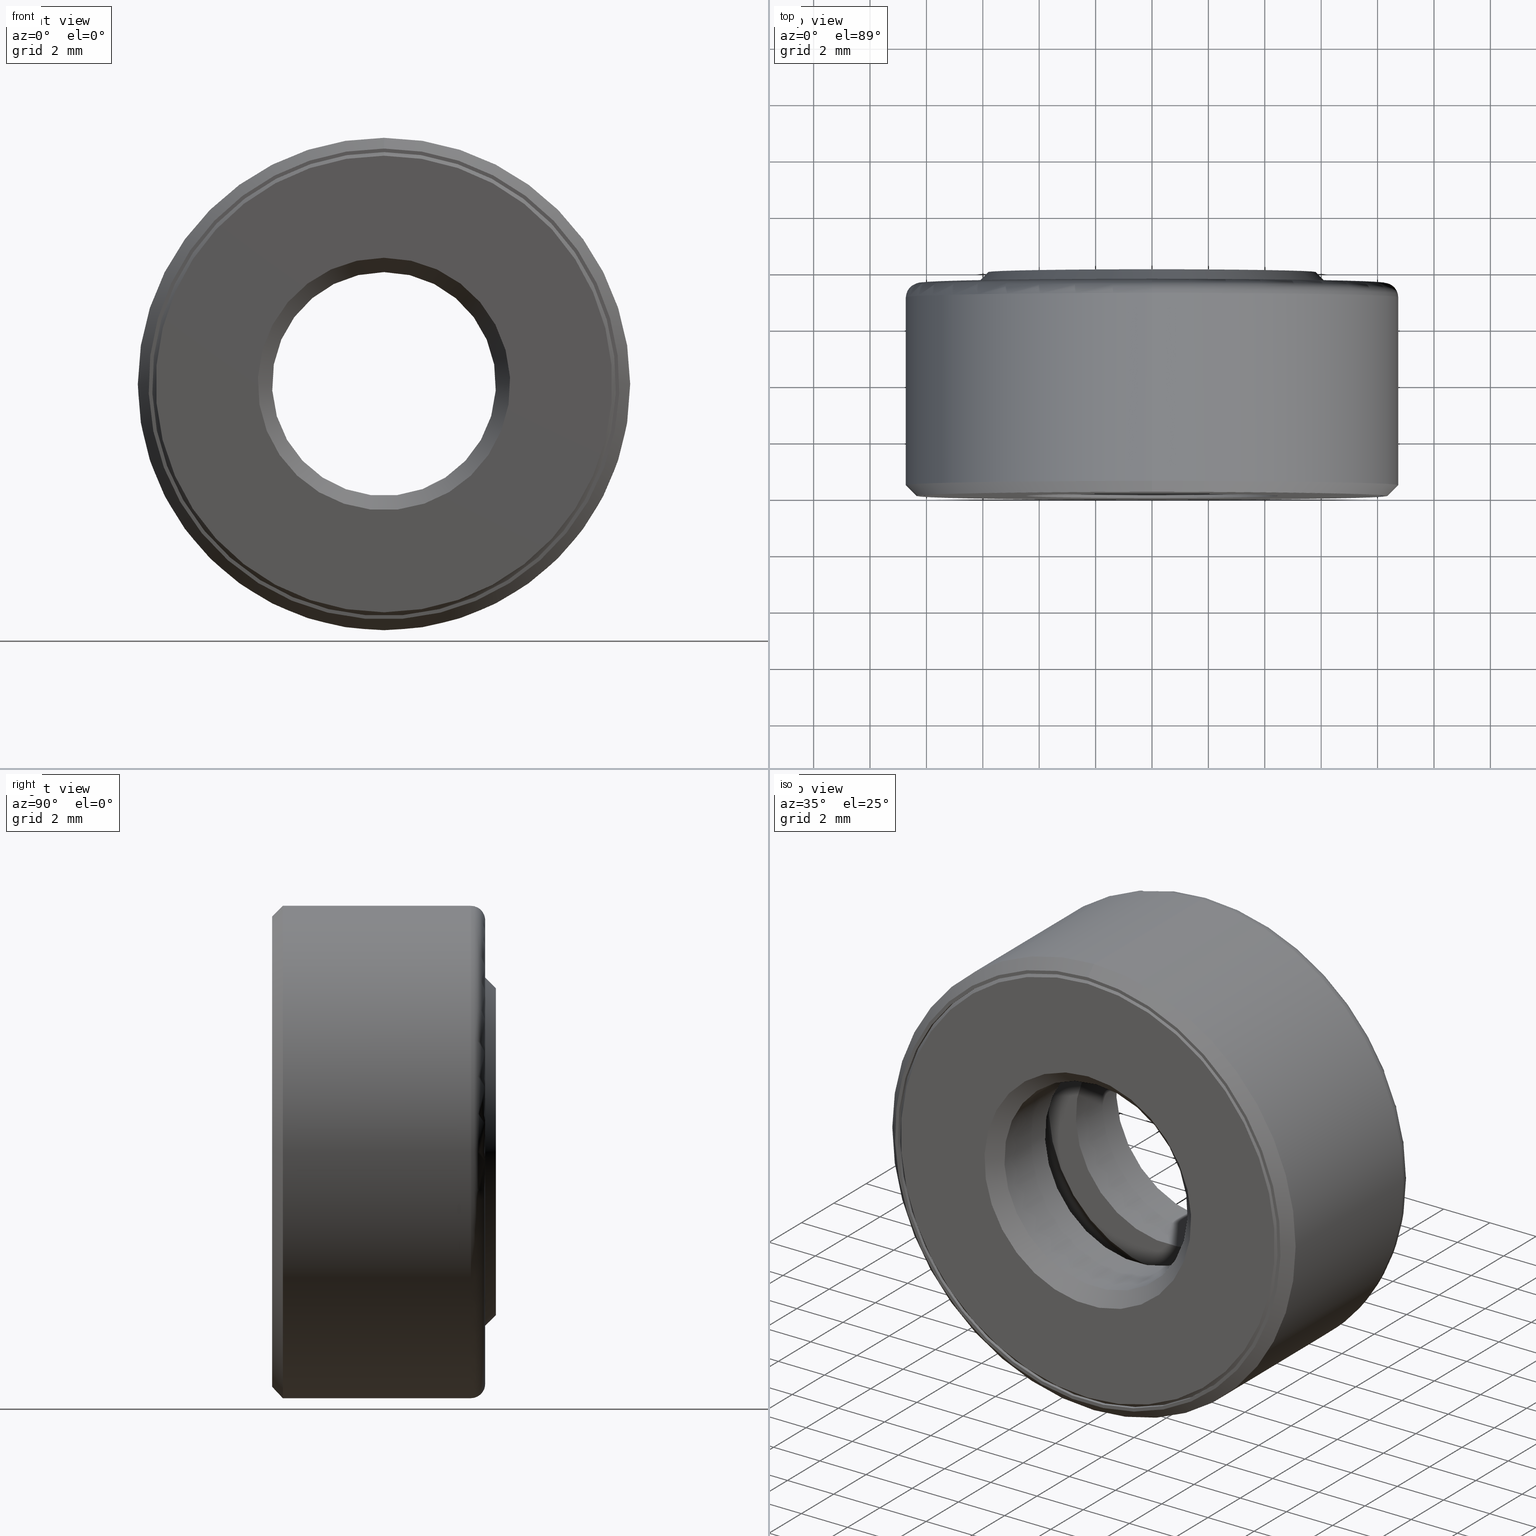
[diagram: canonical four-view strip — front | top / right | iso, engineering-drawing reading convention]
A machine part, canonical four-view strip (front | top / right | iso — engineering-drawing reading convention). The complete STEP part file that produces these views, byte-faithful:
ISO-10303-21;
HEADER;
FILE_DESCRIPTION (( 'STEP AP203' ),
    '1' );
FILE_NAME ('T-100-00.step',
    '2016-06-29T18:27:09',
    ( '' ),
    ( '' ),
    'SwSTEP 2.0',
    'SolidWorks 2016',
    '' );
FILE_SCHEMA (( 'CONFIG_CONTROL_DESIGN' ));
ENDSEC;

DATA;
#1 = EDGE_CURVE ( 'NONE', #434, #434, #105, .T. ) ;
#2 = CARTESIAN_POINT ( 'NONE',  ( 0.0000000000000000000, 0.2974999999999999900, 0.0000000000000000000 ) ) ;
#3 = DIRECTION ( 'NONE',  ( 0.0000000000000000000, 0.0000000000000000000, 1.000000000000000000 ) ) ;
#4 = ORIENTED_EDGE ( 'NONE', *, *, #45, .T. ) ;
#5 = TOROIDAL_SURFACE ( 'NONE', #60, 0.2522499999999998100, 0.06250000000000000000 ) ;
#6 = CARTESIAN_POINT ( 'NONE',  ( 0.0000000000000000000, -6.402768735150618500E-018, 0.0000000000000000000 ) ) ;
#7 = AXIS2_PLACEMENT_3D ( 'NONE', #490, #65, #578 ) ;
#8 = EDGE_CURVE ( 'NONE', #571, #571, #26, .T. ) ;
#9 = FACE_OUTER_BOUND ( 'NONE', #268, .T. ) ;
#10 = EDGE_LOOP ( 'NONE', ( #586 ) ) ;
#11 = CALENDAR_DATE ( 2016, 29, 6 ) ;
#12 = ADVANCED_FACE ( 'NONE', ( #529, #432 ), #41, .F. ) ;
#13 = DIRECTION ( 'NONE',  ( 0.0000000000000000000, 0.0000000000000000000, 1.000000000000000000 ) ) ;
#14 = APPROVAL ( #34, 'UNSPECIFIED' ) ;
#15 = DIRECTION ( 'NONE',  ( 0.0000000000000000000, 0.0000000000000000000, 1.000000000000000000 ) ) ;
#16 = ADVANCED_FACE ( 'NONE', ( #404, #144 ), #274, .F. ) ;
#17 = DIRECTION ( 'NONE',  ( -0.0000000000000000000, 1.000000000000000000, -0.0000000000000000000 ) ) ;
#18 = FACE_BOUND ( 'NONE', #530, .T. ) ;
#19 = EDGE_CURVE ( 'NONE', #37, #37, #195, .T. ) ;
#20 = EDGE_LOOP ( 'NONE', ( #362 ) ) ;
#21 = ADVANCED_FACE ( 'NONE', ( #414, #9 ), #265, .F. ) ;
#22 = SECURITY_CLASSIFICATION ( '', '', #225 ) ;
#23 = PERSON_AND_ORGANIZATION ( #277, #369 ) ;
#24 = DIRECTION ( 'NONE',  ( -0.0000000000000000000, 1.000000000000000000, -0.0000000000000000000 ) ) ;
#25 = FACE_OUTER_BOUND ( 'NONE', #20, .T. ) ;
#26 = CIRCLE ( 'NONE', #130, 0.3237499999999999300 ) ;
#27 = AXIS2_PLACEMENT_3D ( 'NONE', #509, #231, #229 ) ;
#28 = AXIS2_PLACEMENT_3D ( 'NONE', #387, #445, #13 ) ;
#29 = CARTESIAN_POINT ( 'NONE',  ( 0.0000000000000000000, 0.1937500000000000100, 0.0000000000000000000 ) ) ;
#30 = CARTESIAN_POINT ( 'NONE',  ( 0.0000000000000000000, 0.0000000000000000000, 0.1762500000000000500 ) ) ;
#31 = DIRECTION ( 'NONE',  ( -0.0000000000000000000, 1.000000000000000000, -0.0000000000000000000 ) ) ;
#32 = CIRCLE ( 'NONE', #497, 0.1562500000000000800 ) ;
#33 = ORIENTED_EDGE ( 'NONE', *, *, #584, .F. ) ;
#34 = APPROVAL_STATUS ( 'not_yet_approved' ) ;
#35 = ORIENTED_EDGE ( 'NONE', *, *, #278, .F. ) ;
#36 = LOCAL_TIME ( 14, 27, 9.000000000000000000, #409 ) ;
#37 = VERTEX_POINT ( 'NONE', #261 ) ;
#38 = APPROVAL_ROLE ( '' ) ;
#39 = DATE_TIME_ROLE ( 'creation_date' ) ;
#40 = AXIS2_PLACEMENT_3D ( 'NONE', #299, #254, #194 ) ;
#41 = CYLINDRICAL_SURFACE ( 'NONE', #165, 0.3237499999999999300 ) ;
#42 = DIRECTION ( 'NONE',  ( -0.0000000000000000000, 1.000000000000000000, -0.0000000000000000000 ) ) ;
#43 = ORIENTED_EDGE ( 'NONE', *, *, #149, .F. ) ;
#44 = FACE_BOUND ( 'NONE', #10, .T. ) ;
#45 = EDGE_CURVE ( 'NONE', #506, #506, #510, .T. ) ;
#46 = PLANE ( 'NONE',  #27 ) ;
#47 = DIRECTION ( 'NONE',  ( 0.0000000000000000000, 0.0000000000000000000, 1.000000000000000000 ) ) ;
#48 = AXIS2_PLACEMENT_3D ( 'NONE', #326, #228, #560 ) ;
#49 = DIRECTION ( 'NONE',  ( 0.0000000000000000000, -0.0000000000000000000, -1.000000000000000000 ) ) ;
#50 = ORIENTED_EDGE ( 'NONE', *, *, #406, .F. ) ;
#51 = APPROVAL_DATE_TIME ( #532, #371 ) ;
#52 = VERTEX_POINT ( 'NONE', #118 ) ;
#53 = CC_DESIGN_PERSON_AND_ORGANIZATION_ASSIGNMENT ( #269, #170, ( #22 ) ) ;
#54 = DIRECTION ( 'NONE',  ( -0.0000000000000000000, 1.000000000000000000, -0.0000000000000000000 ) ) ;
#55 = DIRECTION ( 'NONE',  ( -0.0000000000000000000, 1.000000000000000000, -0.0000000000000000000 ) ) ;
#56 = DIRECTION ( 'NONE',  ( 0.0000000000000000000, 0.0000000000000000000, 1.000000000000000000 ) ) ;
#57 = SPHERICAL_SURFACE ( 'NONE', #521, 0.06250000000000001400 ) ;
#58 = ORIENTED_EDGE ( 'NONE', *, *, #103, .T. ) ;
#59 = FACE_OUTER_BOUND ( 'NONE', #377, .T. ) ;
#60 = AXIS2_PLACEMENT_3D ( 'NONE', #108, #346, #202 ) ;
#61 = ADVANCED_FACE ( 'NONE', ( #384, #63 ), #46, .F. ) ;
#62 = DIRECTION ( 'NONE',  ( 0.0000000000000000000, 0.0000000000000000000, -1.000000000000000000 ) ) ;
#63 = FACE_BOUND ( 'NONE', #163, .T. ) ;
#64 = CLOSED_SHELL ( 'NONE', ( #304 ) ) ;
#65 = DIRECTION ( 'NONE',  ( -0.0000000000000000000, 1.000000000000000000, -0.0000000000000000000 ) ) ;
#66 = EDGE_LOOP ( 'NONE', ( #209 ) ) ;
#67 = ADVANCED_FACE ( 'NONE', ( #279, #538 ), #555, .F. ) ;
#68 = ADVANCED_FACE ( 'NONE', ( #292, #129 ), #367, .T. ) ;
#69 = DIRECTION ( 'NONE',  ( 0.0000000000000000000, 0.0000000000000000000, 1.000000000000000000 ) ) ;
#70 = AXIS2_PLACEMENT_3D ( 'NONE', #284, #54, #3 ) ;
#71 = EDGE_CURVE ( 'NONE', #139, #139, #258, .T. ) ;
#72 = CARTESIAN_POINT ( 'NONE',  ( 0.0000000000000000000, 0.005000000000000053000, 0.3237499999999999300 ) ) ;
#73 = CIRCLE ( 'NONE', #515, 0.2022499999999997900 ) ;
#74 = AXIS2_PLACEMENT_3D ( 'NONE', #132, #181, #134 ) ;
#75 = EDGE_LOOP ( 'NONE', ( #131 ) ) ;
#76 = ORIENTED_EDGE ( 'NONE', *, *, #103, .F. ) ;
#77 = COORDINATED_UNIVERSAL_TIME_OFFSET ( 5, 0, .BEHIND. ) ;
#78 = VERTEX_POINT ( 'NONE', #219 ) ;
#79 = CARTESIAN_POINT ( 'NONE',  ( 0.0000000000000000000, 0.1187500000000001100, 0.1562500000000000800 ) ) ;
#80 =( NAMED_UNIT ( * ) PLANE_ANGLE_UNIT ( ) SI_UNIT ( $, .RADIAN. ) );
#81 = MANIFOLD_SOLID_BREP ( 'BALLS[2]', #64 ) ;
#82 = CC_DESIGN_DATE_AND_TIME_ASSIGNMENT ( #260, #600, ( #22 ) ) ;
#83 = APPROVAL_ROLE ( '' ) ;
#84 = DIRECTION ( 'NONE',  ( 0.0000000000000000000, -1.000000000000000000, 0.0000000000000000000 ) ) ;
#85 = CONICAL_SURFACE ( 'NONE', #301, 0.1562500000000000800, 0.7853981633974508300 ) ;
#86 = CARTESIAN_POINT ( 'NONE',  ( 0.0000000000000000000, 0.005000000000000053000, 0.0000000000000000000 ) ) ;
#87 = AXIS2_PLACEMENT_3D ( 'NONE', #605, #366, #601 ) ;
#88 = DIRECTION ( 'NONE',  ( 0.0000000000000000000, 0.0000000000000000000, 1.000000000000000000 ) ) ;
#89 = FACE_OUTER_BOUND ( 'NONE', #75, .T. ) ;
#90 = EDGE_LOOP ( 'NONE', ( #588 ) ) ;
#91 = CALENDAR_DATE ( 2016, 29, 6 ) ;
#92 = EDGE_CURVE ( 'NONE', #253, #253, #152, .T. ) ;
#93 = FACE_BOUND ( 'NONE', #489, .T. ) ;
#94 = DIRECTION ( 'NONE',  ( 0.0000000000000000000, 0.0000000000000000000, 1.000000000000000000 ) ) ;
#95 = PLANE ( 'NONE',  #263 ) ;
#96 = ORIENTED_EDGE ( 'NONE', *, *, #464, .F. ) ;
#97 = ORIENTED_EDGE ( 'NONE', *, *, #71, .T. ) ;
#98 = CARTESIAN_POINT ( 'NONE',  ( -3.558238285066759900E-034, -3.201384367575308500E-018, 0.0000000000000000000 ) ) ;
#99 = CIRCLE ( 'NONE', #7, 0.3022499999999998500 ) ;
#100 = AXIS2_PLACEMENT_3D ( 'NONE', #98, #338, #291 ) ;
#101 = DIRECTION ( 'NONE',  ( -0.0000000000000000000, 1.000000000000000000, -0.0000000000000000000 ) ) ;
#102 = CARTESIAN_POINT ( 'NONE',  ( 0.0000000000000000000, 0.0000000000000000000, 0.0000000000000000000 ) ) ;
#103 = EDGE_CURVE ( 'NONE', #442, #442, #525, .T. ) ;
#104 = CARTESIAN_POINT ( 'NONE',  ( 0.2522499999999998100, 0.1562500000000000300, -1.761452335446359400E-015 ) ) ;
#105 = CIRCLE ( 'NONE', #114, 0.3237500000000000400 ) ;
#106 = ORIENTED_EDGE ( 'NONE', *, *, #172, .T. ) ;
#107 = DIRECTION ( 'NONE',  ( -0.0000000000000000000, 1.000000000000000000, -0.0000000000000000000 ) ) ;
#108 = CARTESIAN_POINT ( 'NONE',  ( 0.0000000000000000000, 0.1562500000000000300, 0.0000000000000000000 ) ) ;
#109 = ADVANCED_FACE ( 'NONE', ( #303, #603 ), #322, .T. ) ;
#110 = EDGE_LOOP ( 'NONE', ( #517 ) ) ;
#111 = ORIENTED_EDGE ( 'NONE', *, *, #1, .T. ) ;
#112 = TOROIDAL_SURFACE ( 'NONE', #554, 0.2522499999999998100, 0.06249999999999999300 ) ;
#113 = CARTESIAN_POINT ( 'NONE',  ( 0.0000000000000000000, 0.2974999999999999900, 0.2637499999999999300 ) ) ;
#114 = AXIS2_PLACEMENT_3D ( 'NONE', #122, #221, #264 ) ;
#115 = FACE_OUTER_BOUND ( 'NONE', #476, .T. ) ;
#116 = AXIS2_PLACEMENT_3D ( 'NONE', #583, #266, #359 ) ;
#117 = EDGE_LOOP ( 'NONE', ( #33 ) ) ;
#118 = CARTESIAN_POINT ( 'NONE',  ( 0.0000000000000000000, 0.01999999999999995900, 0.1562500000000000300 ) ) ;
#119 = COORDINATED_UNIVERSAL_TIME_OFFSET ( 5, 0, .BEHIND. ) ;
#120 = CARTESIAN_POINT ( 'NONE',  ( 0.0000000000000000000, 0.1937500000000000100, 0.3022499999999998500 ) ) ;
#121 = EDGE_CURVE ( 'NONE', #576, #576, #32, .T. ) ;
#122 = CARTESIAN_POINT ( 'NONE',  ( 0.0000000000000000000, 0.2974999999999999900, 0.0000000000000000000 ) ) ;
#123 = ADVANCED_BREP_SHAPE_REPRESENTATION ( 'T-100-00', ( #318, #332, #288, #564, #81, #237, #116 ), #419 ) ;
#124 = CARTESIAN_POINT ( 'NONE',  ( 0.0000000000000000000, 0.1187500000000001100, 0.0000000000000000000 ) ) ;
#125 = EDGE_LOOP ( 'NONE', ( #35 ) ) ;
#126 = CARTESIAN_POINT ( 'NONE',  ( 0.0000000000000000000, 0.2775000000000000200, 0.3237499999999999300 ) ) ;
#127 = DIRECTION ( 'NONE',  ( 0.0000000000000000000, 0.0000000000000000000, 1.000000000000000000 ) ) ;
#128 = AXIS2_PLACEMENT_3D ( 'NONE', #486, #437, #15 ) ;
#129 = FACE_OUTER_BOUND ( 'NONE', #416, .T. ) ;
#130 = AXIS2_PLACEMENT_3D ( 'NONE', #124, #593, #508 ) ;
#131 = ORIENTED_EDGE ( 'NONE', *, *, #278, .T. ) ;
#132 = CARTESIAN_POINT ( 'NONE',  ( 0.0000000000000000000, 0.2774999999999999700, 0.0000000000000000000 ) ) ;
#133 = CC_DESIGN_APPROVAL ( #523, ( #22 ) ) ;
#134 = DIRECTION ( 'NONE',  ( 0.0000000000000000000, 0.0000000000000000000, 1.000000000000000000 ) ) ;
#135 = FACE_BOUND ( 'NONE', #549, .T. ) ;
#136 = CARTESIAN_POINT ( 'NONE',  ( 0.0000000000000000000, 0.01999999999999995900, 0.0000000000000000000 ) ) ;
#137 = ORIENTED_EDGE ( 'NONE', *, *, #8, .T. ) ;
#138 = CALENDAR_DATE ( 2016, 29, 6 ) ;
#139 = VERTEX_POINT ( 'NONE', #72 ) ;
#140 = AXIS2_PLACEMENT_3D ( 'NONE', #156, #536, #197 ) ;
#141 = DIRECTION ( 'NONE',  ( 0.0000000000000000000, 0.0000000000000000000, 1.000000000000000000 ) ) ;
#142 = DIRECTION ( 'NONE',  ( -0.0000000000000000000, 1.000000000000000000, -0.0000000000000000000 ) ) ;
#143 = DIRECTION ( 'NONE',  ( 0.0000000000000000000, 0.0000000000000000000, 1.000000000000000000 ) ) ;
#144 = FACE_BOUND ( 'NONE', #459, .T. ) ;
#145 = DIRECTION ( 'NONE',  ( -0.0000000000000000000, 1.000000000000000000, -0.0000000000000000000 ) ) ;
#146 = AXIS2_PLACEMENT_3D ( 'NONE', #463, #423, #47 ) ;
#147 = AXIS2_PLACEMENT_3D ( 'NONE', #6, #55, #380 ) ;
#148 = DIRECTION ( 'NONE',  ( 0.0000000000000000000, 0.0000000000000000000, 1.000000000000000000 ) ) ;
#149 = EDGE_CURVE ( 'NONE', #340, #340, #285, .T. ) ;
#150 = CARTESIAN_POINT ( 'NONE',  ( 0.0000000000000000000, 0.3125000000000000000, 0.0000000000000000000 ) ) ;
#151 = ADVANCED_FACE ( 'NONE', ( #18, #514 ), #95, .F. ) ;
#152 = CIRCLE ( 'NONE', #87, 0.1562500000000000800 ) ;
#153 = EDGE_LOOP ( 'NONE', ( #390 ) ) ;
#154 = ORIENTED_EDGE ( 'NONE', *, *, #220, .T. ) ;
#155 = PERSON_AND_ORGANIZATION ( #277, #369 ) ;
#156 = CARTESIAN_POINT ( 'NONE',  ( 0.0000000000000000000, 0.2775000000000000200, 0.0000000000000000000 ) ) ;
#157 = FACE_OUTER_BOUND ( 'NONE', #562, .T. ) ;
#158 = ADVANCED_FACE ( 'NONE', ( #115, #162 ), #466, .F. ) ;
#159 = DIRECTION ( 'NONE',  ( 0.0000000000000000000, 0.0000000000000000000, 1.000000000000000000 ) ) ;
#160 = CARTESIAN_POINT ( 'NONE',  ( 0.0000000000000000000, 0.1937500000000000100, 0.2022499999999997900 ) ) ;
#161 = ADVANCED_FACE ( 'NONE', ( #389, #400 ), #189, .F. ) ;
#162 = FACE_OUTER_BOUND ( 'NONE', #240, .T. ) ;
#163 = EDGE_LOOP ( 'NONE', ( #502 ) ) ;
#164 = CARTESIAN_POINT ( 'NONE',  ( 8.807261677231797100E-016, 0.1562500000000000300, 0.2522499999999998100 ) ) ;
#165 = AXIS2_PLACEMENT_3D ( 'NONE', #173, #408, #127 ) ;
#166 = CLOSED_SHELL ( 'NONE', ( #255 ) ) ;
#167 = APPLICATION_CONTEXT ( 'configuration controlled 3d designs of mechanical parts and assemblies' ) ;
#168 = APPROVAL_DATE_TIME ( #184, #523 ) ;
#169 = CIRCLE ( 'NONE', #140, 0.2637499999999999300 ) ;
#170 = PERSON_AND_ORGANIZATION_ROLE ( 'classification_officer' ) ;
#171 = DIMENSIONAL_EXPONENTS ( 1.000000000000000000, 0.0000000000000000000, 0.0000000000000000000, 0.0000000000000000000, 0.0000000000000000000, 0.0000000000000000000, 0.0000000000000000000 ) ;
#172 = EDGE_CURVE ( 'NONE', #52, #52, #493, .T. ) ;
#173 = CARTESIAN_POINT ( 'NONE',  ( 0.0000000000000000000, 0.0000000000000000000, 0.0000000000000000000 ) ) ;
#174 = EDGE_LOOP ( 'NONE', ( #137 ) ) ;
#175 = CONICAL_SURFACE ( 'NONE', #147, 0.3187499999999999200, 0.7853981633974438400 ) ;
#176 = EDGE_LOOP ( 'NONE', ( #580 ) ) ;
#177 = CIRCLE ( 'NONE', #364, 0.1762500000000000500 ) ;
#178 = DIRECTION ( 'NONE',  ( 0.0000000000000000000, 0.0000000000000000000, 1.000000000000000000 ) ) ;
#179 = DIRECTION ( 'NONE',  ( -0.0000000000000000000, 1.000000000000000000, -0.0000000000000000000 ) ) ;
#180 = CC_DESIGN_PERSON_AND_ORGANIZATION_ASSIGNMENT ( #155, #317, ( #477 ) ) ;
#181 = DIRECTION ( 'NONE',  ( -0.0000000000000000000, 1.000000000000000000, -0.0000000000000000000 ) ) ;
#182 = CIRCLE ( 'NONE', #70, 0.3437499999999999400 ) ;
#183 = DIRECTION ( 'NONE',  ( -0.0000000000000000000, 1.000000000000000000, -0.0000000000000000000 ) ) ;
#184 = DATE_AND_TIME ( #138, #314 ) ;
#185 = VERTEX_POINT ( 'NONE', #222 ) ;
#186 = DIRECTION ( 'NONE',  ( 6.982962677686265100E-015, -0.0000000000000000000, 1.000000000000000000 ) ) ;
#187 = CARTESIAN_POINT ( 'NONE',  ( 0.0000000000000000000, 0.1187500000000000800, 0.0000000000000000000 ) ) ;
#188 = DIRECTION ( 'NONE',  ( 0.0000000000000000000, -0.0000000000000000000, -1.000000000000000000 ) ) ;
#189 = CYLINDRICAL_SURFACE ( 'NONE', #388, 0.2637499999999999300 ) ;
#190 = ORIENTED_EDGE ( 'NONE', *, *, #45, .F. ) ;
#191 = AXIS2_PLACEMENT_3D ( 'NONE', #102, #245, #141 ) ;
#192 = CARTESIAN_POINT ( 'NONE',  ( 0.0000000000000000000, 0.3125000000000000600, 0.0000000000000000000 ) ) ;
#193 = AXIS2_PLACEMENT_3D ( 'NONE', #244, #522, #333 ) ;
#194 = DIRECTION ( 'NONE',  ( 0.0000000000000000000, -0.0000000000000000000, -1.000000000000000000 ) ) ;
#195 = CIRCLE ( 'NONE', #379, 0.3187499999999999200 ) ;
#196 = ORIENTED_EDGE ( 'NONE', *, *, #1, .F. ) ;
#197 = DIRECTION ( 'NONE',  ( 0.0000000000000000000, 0.0000000000000000000, 1.000000000000000000 ) ) ;
#198 = APPROVAL_DATE_TIME ( #519, #14 ) ;
#199 = ADVANCED_FACE ( 'NONE', ( #559, #585 ), #230, .T. ) ;
#200 = FACE_BOUND ( 'NONE', #604, .T. ) ;
#201 = CARTESIAN_POINT ( 'NONE',  ( 0.0000000000000000000, 0.1562500000000000300, 0.0000000000000000000 ) ) ;
#202 = DIRECTION ( 'NONE',  ( 0.0000000000000000000, 0.0000000000000000000, 1.000000000000000000 ) ) ;
#203 = EDGE_CURVE ( 'NONE', #472, #472, #484, .T. ) ;
#204 = AXIS2_PLACEMENT_3D ( 'NONE', #443, #391, #575 ) ;
#205 = CARTESIAN_POINT ( 'NONE',  ( 0.0000000000000000000, 0.0000000000000000000, 0.0000000000000000000 ) ) ;
#206 = EDGE_LOOP ( 'NONE', ( #485 ) ) ;
#207 = UNCERTAINTY_MEASURE_WITH_UNIT (LENGTH_MEASURE( 1.000000000000000100E-005 ), #457, 'distance_accuracy_value', 'NONE');
#208 = ADVANCED_FACE ( 'NONE', ( #135, #374 ), #524, .F. ) ;
#209 = ORIENTED_EDGE ( 'NONE', *, *, #239, .F. ) ;
#210 = CARTESIAN_POINT ( 'NONE',  ( 0.0000000000000000000, 0.2774999999999999700, 0.3437500000000000600 ) ) ;
#211 = SPHERICAL_SURFACE ( 'NONE', #323, 0.06250000000000001400 ) ;
#212 = DIRECTION ( 'NONE',  ( -1.000000000000000000, 0.0000000000000000000, 3.491481338843132600E-015 ) ) ;
#213 = CARTESIAN_POINT ( 'NONE',  ( 0.0000000000000000000, 0.1187500000000001100, 0.3237499999999999300 ) ) ;
#214 = AXIS2_PLACEMENT_3D ( 'NONE', #553, #84, #226 ) ;
#215 = FACE_OUTER_BOUND ( 'NONE', #426, .T. ) ;
#216 = CLOSED_SHELL ( 'NONE', ( #487, #290, #158, #393, #161, #151, #68, #297, #199, #61, #12, #300, #342, #16, #67, #208 ) ) ;
#217 = APPROVAL_PERSON_ORGANIZATION ( #248, #14, #83 ) ;
#218 = LENGTH_MEASURE_WITH_UNIT ( LENGTH_MEASURE( 0.02539999999999999900 ), #551 );
#219 = CARTESIAN_POINT ( 'NONE',  ( 0.0000000000000000000, 0.01500000000000001200, 0.3437499999999999400 ) ) ;
#220 = EDGE_CURVE ( 'NONE', #270, #270, #73, .T. ) ;
#221 = DIRECTION ( 'NONE',  ( -0.0000000000000000000, 1.000000000000000000, -0.0000000000000000000 ) ) ;
#222 = CARTESIAN_POINT ( 'NONE',  ( 0.0000000000000000000, 0.2245000000000002800, 0.3167499999999998600 ) ) ;
#223 = CARTESIAN_POINT ( 'NONE',  ( 0.0000000000000000000, 0.0000000000000000000, 0.0000000000000000000 ) ) ;
#224 = ORIENTED_EDGE ( 'NONE', *, *, #544, .T. ) ;
#225 = SECURITY_CLASSIFICATION_LEVEL ( 'unclassified' ) ;
#226 = DIRECTION ( 'NONE',  ( 0.0000000000000000000, 0.0000000000000000000, -1.000000000000000000 ) ) ;
#227 = FACE_BOUND ( 'NONE', #305, .T. ) ;
#228 = DIRECTION ( 'NONE',  ( 0.0000000000000000000, -1.000000000000000000, 0.0000000000000000000 ) ) ;
#229 = DIRECTION ( 'NONE',  ( 0.0000000000000000000, 0.0000000000000000000, 1.000000000000000000 ) ) ;
#230 = CONICAL_SURFACE ( 'NONE', #293, 0.3287499999999999900, 0.7853981633974447300 ) ;
#231 = DIRECTION ( 'NONE',  ( -0.0000000000000000000, 1.000000000000000000, 0.0000000000000000000 ) ) ;
#232 = EDGE_LOOP ( 'NONE', ( #190 ) ) ;
#233 = APPROVAL_PERSON_ORGANIZATION ( #392, #371, #38 ) ;
#234 = DIRECTION ( 'NONE',  ( 0.0000000000000000000, -1.000000000000000000, 0.0000000000000000000 ) ) ;
#235 = AXIS2_PLACEMENT_3D ( 'NONE', #136, #518, #56 ) ;
#236 = DIRECTION ( 'NONE',  ( 0.0000000000000000000, 0.0000000000000000000, 1.000000000000000000 ) ) ;
#237 = MANIFOLD_SOLID_BREP ( 'BALLS[3]', #166 ) ;
#238 = DIRECTION ( 'NONE',  ( -1.000000000000000000, 0.0000000000000000000, 6.982962677686265100E-015 ) ) ;
#239 = EDGE_CURVE ( 'NONE', #491, #491, #350, .T. ) ;
#240 = EDGE_LOOP ( 'NONE', ( #313 ) ) ;
#241 = ORIENTED_EDGE ( 'NONE', *, *, #121, .T. ) ;
#242 = DIRECTION ( 'NONE',  ( -0.0000000000000000000, 1.000000000000000000, -0.0000000000000000000 ) ) ;
#243 = VERTEX_POINT ( 'NONE', #458 ) ;
#244 = CARTESIAN_POINT ( 'NONE',  ( 0.0000000000000000000, 0.1937500000000000100, 0.0000000000000000000 ) ) ;
#245 = DIRECTION ( 'NONE',  ( -0.0000000000000000000, 1.000000000000000000, -0.0000000000000000000 ) ) ;
#246 = SPHERICAL_SURFACE ( 'NONE', #482, 0.06250000000000001400 ) ;
#247 = ORIENTED_EDGE ( 'NONE', *, *, #8, .F. ) ;
#248 = PERSON_AND_ORGANIZATION ( #277, #369 ) ;
#249 = CARTESIAN_POINT ( 'NONE',  ( 0.0000000000000000000, 0.2925000000000001500, 0.0000000000000000000 ) ) ;
#250 = ORIENTED_EDGE ( 'NONE', *, *, #92, .F. ) ;
#251 = PLANE ( 'NONE',  #40 ) ;
#252 = EDGE_LOOP ( 'NONE', ( #224 ) ) ;
#253 = VERTEX_POINT ( 'NONE', #79 ) ;
#254 = DIRECTION ( 'NONE',  ( 0.0000000000000000000, -1.000000000000000000, 0.0000000000000000000 ) ) ;
#255 = ADVANCED_FACE ( 'NONE', ( ), #246, .T. ) ;
#256 = CARTESIAN_POINT ( 'NONE',  ( 0.0000000000000000000, -6.582533970634581700E-018, 0.3237499999999999300 ) ) ;
#257 = DIRECTION ( 'NONE',  ( -3.491481338843132600E-015, 0.0000000000000000000, -1.000000000000000000 ) ) ;
#258 = CIRCLE ( 'NONE', #540, 0.3237499999999999300 ) ;
#259 = EDGE_LOOP ( 'NONE', ( #97 ) ) ;
#260 = DATE_AND_TIME ( #606, #495 ) ;
#261 = CARTESIAN_POINT ( 'NONE',  ( 0.0000000000000000000, -6.402768735150618500E-018, 0.3187499999999999200 ) ) ;
#262 = DIRECTION ( 'NONE',  ( 0.0000000000000000000, 0.0000000000000000000, 1.000000000000000000 ) ) ;
#263 = AXIS2_PLACEMENT_3D ( 'NONE', #558, #234, #49 ) ;
#264 = DIRECTION ( 'NONE',  ( 0.0000000000000000000, 0.0000000000000000000, 1.000000000000000000 ) ) ;
#265 = CYLINDRICAL_SURFACE ( 'NONE', #334, 0.1562500000000000800 ) ;
#266 = DIRECTION ( 'NONE',  ( 0.0000000000000000000, 0.0000000000000000000, 1.000000000000000000 ) ) ;
#267 = ORIENTED_EDGE ( 'NONE', *, *, #399, .F. ) ;
#268 = EDGE_LOOP ( 'NONE', ( #368 ) ) ;
#269 = PERSON_AND_ORGANIZATION ( #277, #369 ) ;
#270 = VERTEX_POINT ( 'NONE', #454 ) ;
#271 = APPLICATION_CONTEXT ( 'configuration controlled 3d designs of mechanical parts and assemblies' ) ;
#272 = EDGE_CURVE ( 'NONE', #456, #456, #335, .T. ) ;
#273 = DIRECTION ( 'NONE',  ( 0.0000000000000000000, 0.0000000000000000000, 1.000000000000000000 ) ) ;
#274 = CONICAL_SURFACE ( 'NONE', #214, 0.1562500000000000300, 0.7853981633974491700 ) ;
#275 = CARTESIAN_POINT ( 'NONE',  ( 0.0000000000000000000, 0.1937500000000000100, 0.0000000000000000000 ) ) ;
#276 = DIRECTION ( 'NONE',  ( -0.0000000000000000000, 1.000000000000000000, -0.0000000000000000000 ) ) ;
#277 = PERSON ( 'UNSPECIFIED', 'UNSPECIFIED', 'UNSPECIFIED', ('UNSPECIFIED'), ('UNSPECIFIED'), ('UNSPECIFIED') ) ;
#278 = EDGE_CURVE ( 'NONE', #78, #78, #182, .T. ) ;
#279 = FACE_OUTER_BOUND ( 'NONE', #176, .T. ) ;
#280 = ORIENTED_EDGE ( 'NONE', *, *, #595, .F. ) ;
#281 = DESIGN_CONTEXT ( 'detailed design', #167, 'design' ) ;
#282 = CIRCLE ( 'NONE', #204, 0.3237499999999999300 ) ;
#283 = PLANE ( 'NONE',  #100 ) ;
#284 = CARTESIAN_POINT ( 'NONE',  ( 0.0000000000000000000, 0.01500000000000001200, 0.0000000000000000000 ) ) ;
#285 = CIRCLE ( 'NONE', #74, 0.3437500000000000600 ) ;
#286 = AXIS2_PLACEMENT_3D ( 'NONE', #312, #492, #539 ) ;
#287 = DIRECTION ( 'NONE',  ( 0.0000000000000000000, 0.0000000000000000000, 1.000000000000000000 ) ) ;
#288 = MANIFOLD_SOLID_BREP ( 'Revolve3', #468 ) ;
#289 = CARTESIAN_POINT ( 'NONE',  ( 0.0000000000000000000, -6.402768735150615400E-018, 0.0000000000000000000 ) ) ;
#290 = ADVANCED_FACE ( 'NONE', ( #422, #320 ), #382, .F. ) ;
#291 = DIRECTION ( 'NONE',  ( 0.0000000000000000000, 0.0000000000000000000, 1.000000000000000000 ) ) ;
#292 = FACE_OUTER_BOUND ( 'NONE', #511, .T. ) ;
#293 = AXIS2_PLACEMENT_3D ( 'NONE', #289, #142, #328 ) ;
#294 = ORIENTED_EDGE ( 'NONE', *, *, #220, .F. ) ;
#295 = LOCAL_TIME ( 14, 27, 9.000000000000000000, #441 ) ;
#296 = PLANE ( 'NONE',  #128 ) ;
#297 = ADVANCED_FACE ( 'NONE', ( #215, #89 ), #452, .T. ) ;
#298 = VERTEX_POINT ( 'NONE', #160 ) ;
#299 = CARTESIAN_POINT ( 'NONE',  ( 0.0000000000000000000, 0.1937500000000000100, 0.0000000000000000000 ) ) ;
#300 = ADVANCED_FACE ( 'NONE', ( #324, #438 ), #175, .T. ) ;
#301 = AXIS2_PLACEMENT_3D ( 'NONE', #249, #24, #581 ) ;
#302 = CARTESIAN_POINT ( 'NONE',  ( 0.0000000000000000000, 0.0000000000000000000, 0.0000000000000000000 ) ) ;
#303 = FACE_BOUND ( 'NONE', #329, .T. ) ;
#304 = ADVANCED_FACE ( 'NONE', ( ), #57, .T. ) ;
#305 = EDGE_LOOP ( 'NONE', ( #516 ) ) ;
#306 = FACE_OUTER_BOUND ( 'NONE', #206, .T. ) ;
#307 = DIRECTION ( 'NONE',  ( 1.000000000000000000, 0.0000000000000000000, 0.0000000000000000000 ) ) ;
#308 = AXIS2_PLACEMENT_3D ( 'NONE', #2, #417, #420 ) ;
#309 = PRODUCT_DEFINITION ( 'UNKNOWN', '', #592, #281 ) ;
#310 = FACE_OUTER_BOUND ( 'NONE', #252, .T. ) ;
#311 = ORIENTED_EDGE ( 'NONE', *, *, #272, .F. ) ;
#312 = CARTESIAN_POINT ( 'NONE',  ( 0.0000000000000000000, 0.2245000000000002800, 0.0000000000000000000 ) ) ;
#313 = ORIENTED_EDGE ( 'NONE', *, *, #584, .T. ) ;
#314 = LOCAL_TIME ( 14, 27, 9.000000000000000000, #77 ) ;
#315 = VERTEX_POINT ( 'NONE', #413 ) ;
#316 = APPLICATION_PROTOCOL_DEFINITION ( 'international standard', 'config_control_design', 1994, #271 ) ;
#317 = PERSON_AND_ORGANIZATION_ROLE ( 'design_owner' ) ;
#318 = MANIFOLD_SOLID_BREP ( 'Revolve2[1]', #216 ) ;
#319 = ORIENTED_EDGE ( 'NONE', *, *, #544, .F. ) ;
#320 = FACE_OUTER_BOUND ( 'NONE', #174, .T. ) ;
#321 = EDGE_LOOP ( 'NONE', ( #267 ) ) ;
#322 = PLANE ( 'NONE',  #48 ) ;
#323 = AXIS2_PLACEMENT_3D ( 'NONE', #164, #212, #257 ) ;
#324 = FACE_OUTER_BOUND ( 'NONE', #548, .T. ) ;
#325 = CLOSED_SHELL ( 'NONE', ( #577 ) ) ;
#326 = CARTESIAN_POINT ( 'NONE',  ( 0.0000000000000000000, 0.1937500000000000100, 0.0000000000000000000 ) ) ;
#327 = CARTESIAN_POINT ( 'NONE',  ( 2.829130371345593400E-016, 0.1187500000000000800, 0.0000000000000000000 ) ) ;
#328 = DIRECTION ( 'NONE',  ( 0.0000000000000000000, 0.0000000000000000000, 1.000000000000000000 ) ) ;
#329 = EDGE_LOOP ( 'NONE', ( #556 ) ) ;
#330 = ORIENTED_EDGE ( 'NONE', *, *, #566, .F. ) ;
#331 = FACE_OUTER_BOUND ( 'NONE', #453, .T. ) ;
#332 = MANIFOLD_SOLID_BREP ( 'Revolve2[2]', #398 ) ;
#333 = DIRECTION ( 'NONE',  ( 0.0000000000000000000, 0.0000000000000000000, 1.000000000000000000 ) ) ;
#334 = AXIS2_PLACEMENT_3D ( 'NONE', #223, #545, #262 ) ;
#335 = CIRCLE ( 'NONE', #430, 0.1762500000000001000 ) ;
#336 = AXIS2_PLACEMENT_3D ( 'NONE', #150, #396, #62 ) ;
#337 = ORIENTED_EDGE ( 'NONE', *, *, #595, .T. ) ;
#338 = DIRECTION ( 'NONE',  ( -0.0000000000000000000, 1.000000000000000000, 0.0000000000000000000 ) ) ;
#339 = DATE_AND_TIME ( #361, #295 ) ;
#340 = VERTEX_POINT ( 'NONE', #210 ) ;
#341 = DIRECTION ( 'NONE',  ( 0.0000000000000000000, 0.0000000000000000000, 1.000000000000000000 ) ) ;
#342 = ADVANCED_FACE ( 'NONE', ( #572, #501 ), #283, .F. ) ;
#343 = PLANE ( 'NONE',  #28 ) ;
#344 = DIRECTION ( 'NONE',  ( -0.0000000000000000000, 1.000000000000000000, -0.0000000000000000000 ) ) ;
#345 = EDGE_LOOP ( 'NONE', ( #50 ) ) ;
#346 = DIRECTION ( 'NONE',  ( -0.0000000000000000000, 1.000000000000000000, -0.0000000000000000000 ) ) ;
#347 = CIRCLE ( 'NONE', #381, 0.3167499999999998600 ) ;
#348 = AXIS2_PLACEMENT_3D ( 'NONE', #448, #587, #494 ) ;
#349 = CARTESIAN_POINT ( 'NONE',  ( 0.0000000000000000000, 0.3125000000000000000, 0.0000000000000000000 ) ) ;
#350 = CIRCLE ( 'NONE', #193, 0.3022499999999998500 ) ;
#351 = CARTESIAN_POINT ( 'NONE',  ( 0.0000000000000000000, -6.402768735150615400E-018, 0.3287499999999999900 ) ) ;
#352 = ORIENTED_EDGE ( 'NONE', *, *, #566, .T. ) ;
#353 = CARTESIAN_POINT ( 'NONE',  ( 0.0000000000000000000, 0.1937500000000000100, 0.1562500000000000800 ) ) ;
#354 = CARTESIAN_POINT ( 'NONE',  ( 0.0000000000000000000, 0.2974999999999999900, 0.3237500000000000400 ) ) ;
#355 = AXIS2_PLACEMENT_3D ( 'NONE', #465, #370, #469 ) ;
#356 = PRODUCT_DEFINITION_SHAPE ( 'NONE', 'NONE',  #309 ) ;
#357 = APPROVAL_ROLE ( '' ) ;
#358 = EDGE_LOOP ( 'NONE', ( #58 ) ) ;
#359 = DIRECTION ( 'NONE',  ( 1.000000000000000000, 0.0000000000000000000, 0.0000000000000000000 ) ) ;
#360 = ORIENTED_EDGE ( 'NONE', *, *, #71, .F. ) ;
#361 = CALENDAR_DATE ( 2016, 29, 6 ) ;
#362 = ORIENTED_EDGE ( 'NONE', *, *, #474, .T. ) ;
#363 = CIRCLE ( 'NONE', #403, 0.2022499999999997900 ) ;
#364 = AXIS2_PLACEMENT_3D ( 'NONE', #302, #344, #148 ) ;
#365 = PRODUCT_RELATED_PRODUCT_CATEGORY ( 'detail', '', ( #477 ) ) ;
#366 = DIRECTION ( 'NONE',  ( -0.0000000000000000000, 1.000000000000000000, -0.0000000000000000000 ) ) ;
#367 = TOROIDAL_SURFACE ( 'NONE', #467, 0.3237500000000000400, 0.01999999999999999000 ) ;
#368 = ORIENTED_EDGE ( 'NONE', *, *, #121, .F. ) ;
#369 = ORGANIZATION ( 'UNSPECIFIED', 'UNSPECIFIED', '' ) ;
#370 = DIRECTION ( 'NONE',  ( -0.0000000000000000000, 1.000000000000000000, -0.0000000000000000000 ) ) ;
#371 = APPROVAL ( #594, 'UNSPECIFIED' ) ;
#372 = DIRECTION ( 'NONE',  ( -0.0000000000000000000, 1.000000000000000000, -0.0000000000000000000 ) ) ;
#373 = DIRECTION ( 'NONE',  ( -0.0000000000000000000, 1.000000000000000000, -0.0000000000000000000 ) ) ;
#374 = FACE_OUTER_BOUND ( 'NONE', #561, .T. ) ;
#375 = ORIENTED_EDGE ( 'NONE', *, *, #406, .T. ) ;
#376 = DIRECTION ( 'NONE',  ( 0.0000000000000000000, -1.000000000000000000, 0.0000000000000000000 ) ) ;
#377 = EDGE_LOOP ( 'NONE', ( #294 ) ) ;
#378 = VERTEX_POINT ( 'NONE', #537 ) ;
#379 = AXIS2_PLACEMENT_3D ( 'NONE', #590, #179, #178 ) ;
#380 = DIRECTION ( 'NONE',  ( 0.0000000000000000000, 0.0000000000000000000, 1.000000000000000000 ) ) ;
#381 = AXIS2_PLACEMENT_3D ( 'NONE', #29, #496, #402 ) ;
#382 = PLANE ( 'NONE',  #460 ) ;
#383 = ADVANCED_FACE ( 'NONE', ( #310, #546 ), #394, .T. ) ;
#384 = FACE_OUTER_BOUND ( 'NONE', #232, .T. ) ;
#385 = ORIENTED_EDGE ( 'NONE', *, *, #474, .F. ) ;
#386 = DIRECTION ( 'NONE',  ( 1.047444401652940000E-014, 0.0000000000000000000, 1.000000000000000000 ) ) ;
#387 = CARTESIAN_POINT ( 'NONE',  ( 0.0000000000000000000, 0.2775000000000000200, 0.0000000000000000000 ) ) ;
#388 = AXIS2_PLACEMENT_3D ( 'NONE', #428, #372, #94 ) ;
#389 = FACE_OUTER_BOUND ( 'NONE', #446, .T. ) ;
#390 = ORIENTED_EDGE ( 'NONE', *, *, #19, .T. ) ;
#391 = DIRECTION ( 'NONE',  ( -0.0000000000000000000, 1.000000000000000000, -0.0000000000000000000 ) ) ;
#392 = PERSON_AND_ORGANIZATION ( #277, #369 ) ;
#393 = ADVANCED_FACE ( 'NONE', ( #533, #227 ), #343, .F. ) ;
#394 = CONICAL_SURFACE ( 'NONE', #336, 0.2287499999999998400, 0.7853981633974498300 ) ;
#395 = AXIS2_PLACEMENT_3D ( 'NONE', #205, #488, #341 ) ;
#396 = DIRECTION ( 'NONE',  ( 0.0000000000000000000, -1.000000000000000000, 0.0000000000000000000 ) ) ;
#397 = CARTESIAN_POINT ( 'NONE',  ( 0.0000000000000000000, 0.1187500000000000600, 0.3022499999999998500 ) ) ;
#398 = CLOSED_SHELL ( 'NONE', ( #109, #444, #531, #21, #535, #449, #383, #527 ) ) ;
#399 = EDGE_CURVE ( 'NONE', #298, #298, #363, .T. ) ;
#400 = FACE_OUTER_BOUND ( 'NONE', #358, .T. ) ;
#401 = PERSON_AND_ORGANIZATION ( #277, #369 ) ;
#402 = DIRECTION ( 'NONE',  ( 0.0000000000000000000, 0.0000000000000000000, 1.000000000000000000 ) ) ;
#403 = AXIS2_PLACEMENT_3D ( 'NONE', #528, #107, #159 ) ;
#404 = FACE_OUTER_BOUND ( 'NONE', #345, .T. ) ;
#405 = PERSON_AND_ORGANIZATION_ROLE ( 'creator' ) ;
#406 = EDGE_CURVE ( 'NONE', #557, #557, #177, .T. ) ;
#407 = ORIENTED_EDGE ( 'NONE', *, *, #435, .F. ) ;
#408 = DIRECTION ( 'NONE',  ( -0.0000000000000000000, 1.000000000000000000, -0.0000000000000000000 ) ) ;
#409 = COORDINATED_UNIVERSAL_TIME_OFFSET ( 5, 0, .BEHIND. ) ;
#410 = CIRCLE ( 'NONE', #348, 0.3237499999999999300 ) ;
#411 = MECHANICAL_CONTEXT ( 'NONE', #271, 'mechanical' ) ;
#412 = PERSON_AND_ORGANIZATION_ROLE ( 'creator' ) ;
#413 = CARTESIAN_POINT ( 'NONE',  ( 0.0000000000000000000, 0.3125000000000000000, 0.2287499999999998400 ) ) ;
#414 = FACE_OUTER_BOUND ( 'NONE', #110, .T. ) ;
#415 = ORIENTED_EDGE ( 'NONE', *, *, #19, .F. ) ;
#416 = EDGE_LOOP ( 'NONE', ( #461 ) ) ;
#417 = DIRECTION ( 'NONE',  ( -0.0000000000000000000, 1.000000000000000000, -0.0000000000000000000 ) ) ;
#418 = SHAPE_DEFINITION_REPRESENTATION ( #356, #123 ) ;
#419 =( GEOMETRIC_REPRESENTATION_CONTEXT ( 3 ) GLOBAL_UNCERTAINTY_ASSIGNED_CONTEXT ( ( #207 ) ) GLOBAL_UNIT_ASSIGNED_CONTEXT ( ( #457, #80, #597 ) ) REPRESENTATION_CONTEXT ( 'NONE', 'WORKASPACE' ) );
#420 = DIRECTION ( 'NONE',  ( 0.0000000000000000000, 0.0000000000000000000, 1.000000000000000000 ) ) ;
#421 = CC_DESIGN_SECURITY_CLASSIFICATION ( #22, ( #592 ) ) ;
#422 = FACE_BOUND ( 'NONE', #439, .T. ) ;
#423 = DIRECTION ( 'NONE',  ( -0.0000000000000000000, 1.000000000000000000, -0.0000000000000000000 ) ) ;
#424 = EDGE_LOOP ( 'NONE', ( #407 ) ) ;
#425 = AXIS2_PLACEMENT_3D ( 'NONE', #568, #145, #287 ) ;
#426 = EDGE_LOOP ( 'NONE', ( #43 ) ) ;
#427 = VERTEX_POINT ( 'NONE', #256 ) ;
#428 = CARTESIAN_POINT ( 'NONE',  ( 0.0000000000000000000, 0.0000000000000000000, 0.0000000000000000000 ) ) ;
#429 = DIRECTION ( 'NONE',  ( 1.000000000000000000, 0.0000000000000000000, -1.047444401652940000E-014 ) ) ;
#430 = AXIS2_PLACEMENT_3D ( 'NONE', #192, #101, #431 ) ;
#431 = DIRECTION ( 'NONE',  ( 0.0000000000000000000, 0.0000000000000000000, 1.000000000000000000 ) ) ;
#432 = FACE_OUTER_BOUND ( 'NONE', #259, .T. ) ;
#433 = EDGE_LOOP ( 'NONE', ( #505 ) ) ;
#434 = VERTEX_POINT ( 'NONE', #354 ) ;
#435 = EDGE_CURVE ( 'NONE', #427, #427, #282, .T. ) ;
#436 = CC_DESIGN_APPROVAL ( #371, ( #309 ) ) ;
#437 = DIRECTION ( 'NONE',  ( -0.0000000000000000000, 1.000000000000000000, 0.0000000000000000000 ) ) ;
#438 = FACE_BOUND ( 'NONE', #153, .T. ) ;
#439 = EDGE_LOOP ( 'NONE', ( #385 ) ) ;
#440 = EDGE_LOOP ( 'NONE', ( #415 ) ) ;
#441 = COORDINATED_UNIVERSAL_TIME_OFFSET ( 5, 0, .BEHIND. ) ;
#442 = VERTEX_POINT ( 'NONE', #113 ) ;
#443 = CARTESIAN_POINT ( 'NONE',  ( 0.0000000000000000000, -6.582533970634581700E-018, 0.0000000000000000000 ) ) ;
#444 = ADVANCED_FACE ( 'NONE', ( #306, #462 ), #5, .F. ) ;
#445 = DIRECTION ( 'NONE',  ( -0.0000000000000000000, 1.000000000000000000, 0.0000000000000000000 ) ) ;
#446 = EDGE_LOOP ( 'NONE', ( #96 ) ) ;
#447 = CIRCLE ( 'NONE', #286, 0.3167499999999998600 ) ;
#448 = CARTESIAN_POINT ( 'NONE',  ( 0.0000000000000000000, 0.2775000000000000200, 0.0000000000000000000 ) ) ;
#449 = ADVANCED_FACE ( 'NONE', ( #331, #93 ), #296, .T. ) ;
#450 = DIRECTION ( 'NONE',  ( 0.0000000000000000000, 0.0000000000000000000, 1.000000000000000000 ) ) ;
#451 = CARTESIAN_POINT ( 'NONE',  ( -0.2522499999999998100, 0.1562500000000000300, 0.0000000000000000000 ) ) ;
#452 = CYLINDRICAL_SURFACE ( 'NONE', #191, 0.3437500000000000000 ) ;
#453 = EDGE_LOOP ( 'NONE', ( #352 ) ) ;
#454 = CARTESIAN_POINT ( 'NONE',  ( 0.0000000000000000000, 0.1187500000000000800, 0.2022499999999997900 ) ) ;
#455 = EDGE_LOOP ( 'NONE', ( #280 ) ) ;
#456 = VERTEX_POINT ( 'NONE', #547 ) ;
#457 =( CONVERSION_BASED_UNIT ( 'INCH', #218 ) LENGTH_UNIT ( ) NAMED_UNIT ( #171 ) );
#458 = CARTESIAN_POINT ( 'NONE',  ( 0.0000000000000000000, 0.1937500000000000100, 0.3167499999999998600 ) ) ;
#459 = EDGE_LOOP ( 'NONE', ( #106 ) ) ;
#460 = AXIS2_PLACEMENT_3D ( 'NONE', #327, #481, #188 ) ;
#461 = ORIENTED_EDGE ( 'NONE', *, *, #149, .T. ) ;
#462 = FACE_OUTER_BOUND ( 'NONE', #66, .T. ) ;
#463 = CARTESIAN_POINT ( 'NONE',  ( 0.0000000000000000000, 0.0000000000000000000, 0.0000000000000000000 ) ) ;
#464 = EDGE_CURVE ( 'NONE', #378, #378, #169, .T. ) ;
#465 = CARTESIAN_POINT ( 'NONE',  ( 0.0000000000000000000, 0.0000000000000000000, 0.0000000000000000000 ) ) ;
#466 = CYLINDRICAL_SURFACE ( 'NONE', #355, 0.3237499999999999300 ) ;
#467 = AXIS2_PLACEMENT_3D ( 'NONE', #473, #42, #273 ) ;
#468 = CLOSED_SHELL ( 'NONE', ( #579 ) ) ;
#469 = DIRECTION ( 'NONE',  ( 0.0000000000000000000, 0.0000000000000000000, 1.000000000000000000 ) ) ;
#470 = LOCAL_TIME ( 14, 27, 9.000000000000000000, #589 ) ;
#471 = CC_DESIGN_PERSON_AND_ORGANIZATION_ASSIGNMENT ( #479, #405, ( #309 ) ) ;
#472 = VERTEX_POINT ( 'NONE', #499 ) ;
#473 = CARTESIAN_POINT ( 'NONE',  ( 0.0000000000000000000, 0.2774999999999999700, 0.0000000000000000000 ) ) ;
#474 = EDGE_CURVE ( 'NONE', #541, #541, #99, .T. ) ;
#475 = CARTESIAN_POINT ( 'NONE',  ( -2.642178503169539100E-015, 0.1562500000000000300, -0.2522499999999998100 ) ) ;
#476 = EDGE_LOOP ( 'NONE', ( #247 ) ) ;
#477 = PRODUCT ( 'T-100-00', 'T-100-00', '', ( #411 ) ) ;
#478 = AXIS2_PLACEMENT_3D ( 'NONE', #513, #276, #236 ) ;
#479 = PERSON_AND_ORGANIZATION ( #277, #369 ) ;
#480 = FACE_OUTER_BOUND ( 'NONE', #598, .T. ) ;
#481 = DIRECTION ( 'NONE',  ( 0.0000000000000000000, -1.000000000000000000, 0.0000000000000000000 ) ) ;
#482 = AXIS2_PLACEMENT_3D ( 'NONE', #475, #429, #386 ) ;
#483 = CARTESIAN_POINT ( 'NONE',  ( -4.407703114777630200E-017, 0.1187500000000001100, 0.0000000000000000000 ) ) ;
#484 = CIRCLE ( 'NONE', #425, 0.1562500000000000800 ) ;
#485 = ORIENTED_EDGE ( 'NONE', *, *, #399, .T. ) ;
#486 = CARTESIAN_POINT ( 'NONE',  ( -4.065249990571843400E-016, 0.3125000000000000000, 0.0000000000000000000 ) ) ;
#487 = ADVANCED_FACE ( 'NONE', ( #59, #25 ), #112, .F. ) ;
#488 = DIRECTION ( 'NONE',  ( -0.0000000000000000000, 1.000000000000000000, -0.0000000000000000000 ) ) ;
#489 = EDGE_LOOP ( 'NONE', ( #311 ) ) ;
#490 = CARTESIAN_POINT ( 'NONE',  ( 0.0000000000000000000, 0.1187500000000000600, 0.0000000000000000000 ) ) ;
#491 = VERTEX_POINT ( 'NONE', #120 ) ;
#492 = DIRECTION ( 'NONE',  ( -0.0000000000000000000, 1.000000000000000000, -0.0000000000000000000 ) ) ;
#493 = CIRCLE ( 'NONE', #235, 0.1562500000000000300 ) ;
#494 = DIRECTION ( 'NONE',  ( 0.0000000000000000000, 0.0000000000000000000, 1.000000000000000000 ) ) ;
#495 = LOCAL_TIME ( 14, 27, 9.000000000000000000, #119 ) ;
#496 = DIRECTION ( 'NONE',  ( -0.0000000000000000000, 1.000000000000000000, -0.0000000000000000000 ) ) ;
#497 = AXIS2_PLACEMENT_3D ( 'NONE', #275, #373, #88 ) ;
#498 = CC_DESIGN_DATE_AND_TIME_ASSIGNMENT ( #339, #39, ( #309 ) ) ;
#499 = CARTESIAN_POINT ( 'NONE',  ( 0.0000000000000000000, 0.2925000000000001500, 0.1562500000000000800 ) ) ;
#500 = APPLICATION_PROTOCOL_DEFINITION ( 'international standard', 'config_control_design', 1994, #167 ) ;
#501 = FACE_BOUND ( 'NONE', #526, .T. ) ;
#502 = ORIENTED_EDGE ( 'NONE', *, *, #435, .T. ) ;
#503 = APPROVAL_STATUS ( 'not_yet_approved' ) ;
#504 = EDGE_LOOP ( 'NONE', ( #4 ) ) ;
#505 = ORIENTED_EDGE ( 'NONE', *, *, #272, .T. ) ;
#506 = VERTEX_POINT ( 'NONE', #351 ) ;
#507 = PERSON_AND_ORGANIZATION_ROLE ( 'design_supplier' ) ;
#508 = DIRECTION ( 'NONE',  ( 0.0000000000000000000, 0.0000000000000000000, 1.000000000000000000 ) ) ;
#509 = CARTESIAN_POINT ( 'NONE',  ( -6.548034062875702500E-034, -6.492651352892599700E-018, 0.0000000000000000000 ) ) ;
#510 = CIRCLE ( 'NONE', #478, 0.3287499999999999900 ) ;
#511 = EDGE_LOOP ( 'NONE', ( #196 ) ) ;
#512 = DIRECTION ( 'NONE',  ( 0.0000000000000000000, 0.0000000000000000000, 1.000000000000000000 ) ) ;
#513 = CARTESIAN_POINT ( 'NONE',  ( 0.0000000000000000000, -6.402768735150615400E-018, 0.0000000000000000000 ) ) ;
#514 = FACE_OUTER_BOUND ( 'NONE', #569, .T. ) ;
#515 = AXIS2_PLACEMENT_3D ( 'NONE', #187, #242, #143 ) ;
#516 = ORIENTED_EDGE ( 'NONE', *, *, #464, .T. ) ;
#517 = ORIENTED_EDGE ( 'NONE', *, *, #203, .T. ) ;
#518 = DIRECTION ( 'NONE',  ( -0.0000000000000000000, 1.000000000000000000, -0.0000000000000000000 ) ) ;
#519 = DATE_AND_TIME ( #91, #36 ) ;
#520 = FACE_OUTER_BOUND ( 'NONE', #433, .T. ) ;
#521 = AXIS2_PLACEMENT_3D ( 'NONE', #104, #186, #238 ) ;
#522 = DIRECTION ( 'NONE',  ( -0.0000000000000000000, 1.000000000000000000, -0.0000000000000000000 ) ) ;
#523 = APPROVAL ( #503, 'UNSPECIFIED' ) ;
#524 = PLANE ( 'NONE',  #552 ) ;
#525 = CIRCLE ( 'NONE', #308, 0.2637499999999999300 ) ;
#526 = EDGE_LOOP ( 'NONE', ( #375 ) ) ;
#527 = ADVANCED_FACE ( 'NONE', ( #157, #480 ), #565, .T. ) ;
#528 = CARTESIAN_POINT ( 'NONE',  ( 0.0000000000000000000, 0.1937500000000000100, 0.0000000000000000000 ) ) ;
#529 = FACE_OUTER_BOUND ( 'NONE', #424, .T. ) ;
#530 = EDGE_LOOP ( 'NONE', ( #76 ) ) ;
#531 = ADVANCED_FACE ( 'NONE', ( #200, #599 ), #251, .T. ) ;
#532 = DATE_AND_TIME ( #11, #470 ) ;
#533 = FACE_OUTER_BOUND ( 'NONE', #117, .T. ) ;
#534 = CC_DESIGN_APPROVAL ( #14, ( #592 ) ) ;
#535 = ADVANCED_FACE ( 'NONE', ( #520, #44 ), #85, .F. ) ;
#536 = DIRECTION ( 'NONE',  ( -0.0000000000000000000, 1.000000000000000000, -0.0000000000000000000 ) ) ;
#537 = CARTESIAN_POINT ( 'NONE',  ( 0.0000000000000000000, 0.2775000000000000200, 0.2637499999999999300 ) ) ;
#538 = FACE_OUTER_BOUND ( 'NONE', #90, .T. ) ;
#539 = DIRECTION ( 'NONE',  ( 0.0000000000000000000, 0.0000000000000000000, 1.000000000000000000 ) ) ;
#540 = AXIS2_PLACEMENT_3D ( 'NONE', #86, #183, #512 ) ;
#541 = VERTEX_POINT ( 'NONE', #397 ) ;
#542 = AXIS2_PLACEMENT_3D ( 'NONE', #451, #543, #307 ) ;
#543 = DIRECTION ( 'NONE',  ( 0.0000000000000000000, 0.0000000000000000000, -1.000000000000000000 ) ) ;
#544 = EDGE_CURVE ( 'NONE', #185, #185, #447, .T. ) ;
#545 = DIRECTION ( 'NONE',  ( -0.0000000000000000000, 1.000000000000000000, -0.0000000000000000000 ) ) ;
#546 = FACE_BOUND ( 'NONE', #573, .T. ) ;
#547 = CARTESIAN_POINT ( 'NONE',  ( 0.0000000000000000000, 0.3125000000000000600, 0.1762500000000001000 ) ) ;
#548 = EDGE_LOOP ( 'NONE', ( #360 ) ) ;
#549 = EDGE_LOOP ( 'NONE', ( #250 ) ) ;
#550 = SPHERICAL_SURFACE ( 'NONE', #542, 0.06250000000000001400 ) ;
#551 =( LENGTH_UNIT ( ) NAMED_UNIT ( * ) SI_UNIT ( $, .METRE. ) );
#552 = AXIS2_PLACEMENT_3D ( 'NONE', #483, #376, #570 ) ;
#553 = CARTESIAN_POINT ( 'NONE',  ( 0.0000000000000000000, 0.01999999999999995900, 0.0000000000000000000 ) ) ;
#554 = AXIS2_PLACEMENT_3D ( 'NONE', #201, #17, #69 ) ;
#555 = CYLINDRICAL_SURFACE ( 'NONE', #146, 0.1562500000000000800 ) ;
#556 = ORIENTED_EDGE ( 'NONE', *, *, #239, .T. ) ;
#557 = VERTEX_POINT ( 'NONE', #30 ) ;
#558 = CARTESIAN_POINT ( 'NONE',  ( 0.0000000000000000000, 0.2974999999999999900, 0.0000000000000000000 ) ) ;
#559 = FACE_OUTER_BOUND ( 'NONE', #125, .T. ) ;
#560 = DIRECTION ( 'NONE',  ( 0.0000000000000000000, -0.0000000000000000000, -1.000000000000000000 ) ) ;
#561 = EDGE_LOOP ( 'NONE', ( #154 ) ) ;
#562 = EDGE_LOOP ( 'NONE', ( #337 ) ) ;
#563 = PERSON_AND_ORGANIZATION ( #277, #369 ) ;
#564 = MANIFOLD_SOLID_BREP ( 'BALLS[1]', #325 ) ;
#565 = CYLINDRICAL_SURFACE ( 'NONE', #395, 0.3167499999999998600 ) ;
#566 = EDGE_CURVE ( 'NONE', #315, #315, #591, .T. ) ;
#567 = CC_DESIGN_PERSON_AND_ORGANIZATION_ASSIGNMENT ( #563, #412, ( #592 ) ) ;
#568 = CARTESIAN_POINT ( 'NONE',  ( 0.0000000000000000000, 0.2925000000000001500, 0.0000000000000000000 ) ) ;
#569 = EDGE_LOOP ( 'NONE', ( #111 ) ) ;
#570 = DIRECTION ( 'NONE',  ( 0.0000000000000000000, -0.0000000000000000000, -1.000000000000000000 ) ) ;
#571 = VERTEX_POINT ( 'NONE', #213 ) ;
#572 = FACE_OUTER_BOUND ( 'NONE', #440, .T. ) ;
#573 = EDGE_LOOP ( 'NONE', ( #330 ) ) ;
#574 = APPROVAL_PERSON_ORGANIZATION ( #401, #523, #357 ) ;
#575 = DIRECTION ( 'NONE',  ( 0.0000000000000000000, 0.0000000000000000000, 1.000000000000000000 ) ) ;
#576 = VERTEX_POINT ( 'NONE', #353 ) ;
#577 = ADVANCED_FACE ( 'NONE', ( ), #211, .T. ) ;
#578 = DIRECTION ( 'NONE',  ( 0.0000000000000000000, 0.0000000000000000000, 1.000000000000000000 ) ) ;
#579 = ADVANCED_FACE ( 'NONE', ( ), #550, .T. ) ;
#580 = ORIENTED_EDGE ( 'NONE', *, *, #172, .F. ) ;
#581 = DIRECTION ( 'NONE',  ( 0.0000000000000000000, 0.0000000000000000000, 1.000000000000000000 ) ) ;
#582 = VERTEX_POINT ( 'NONE', #126 ) ;
#583 = CARTESIAN_POINT ( 'NONE',  ( 0.0000000000000000000, 0.0000000000000000000, 0.0000000000000000000 ) ) ;
#584 = EDGE_CURVE ( 'NONE', #582, #582, #410, .T. ) ;
#585 = FACE_BOUND ( 'NONE', #504, .T. ) ;
#586 = ORIENTED_EDGE ( 'NONE', *, *, #203, .F. ) ;
#587 = DIRECTION ( 'NONE',  ( -0.0000000000000000000, 1.000000000000000000, -0.0000000000000000000 ) ) ;
#588 = ORIENTED_EDGE ( 'NONE', *, *, #92, .T. ) ;
#589 = COORDINATED_UNIVERSAL_TIME_OFFSET ( 5, 0, .BEHIND. ) ;
#590 = CARTESIAN_POINT ( 'NONE',  ( 0.0000000000000000000, -6.402768735150618500E-018, 0.0000000000000000000 ) ) ;
#591 = CIRCLE ( 'NONE', #602, 0.2287499999999998400 ) ;
#592 = PRODUCT_DEFINITION_FORMATION_WITH_SPECIFIED_SOURCE ( 'ANY', '', #477, .NOT_KNOWN. ) ;
#593 = DIRECTION ( 'NONE',  ( -0.0000000000000000000, 1.000000000000000000, -0.0000000000000000000 ) ) ;
#594 = APPROVAL_STATUS ( 'not_yet_approved' ) ;
#595 = EDGE_CURVE ( 'NONE', #243, #243, #347, .T. ) ;
#596 = CC_DESIGN_PERSON_AND_ORGANIZATION_ASSIGNMENT ( #23, #507, ( #592 ) ) ;
#597 =( NAMED_UNIT ( * ) SI_UNIT ( $, .STERADIAN. ) SOLID_ANGLE_UNIT ( ) );
#598 = EDGE_LOOP ( 'NONE', ( #319 ) ) ;
#599 = FACE_OUTER_BOUND ( 'NONE', #321, .T. ) ;
#600 = DATE_TIME_ROLE ( 'classification_date' ) ;
#601 = DIRECTION ( 'NONE',  ( 0.0000000000000000000, 0.0000000000000000000, 1.000000000000000000 ) ) ;
#602 = AXIS2_PLACEMENT_3D ( 'NONE', #349, #31, #450 ) ;
#603 = FACE_OUTER_BOUND ( 'NONE', #455, .T. ) ;
#604 = EDGE_LOOP ( 'NONE', ( #241 ) ) ;
#605 = CARTESIAN_POINT ( 'NONE',  ( 0.0000000000000000000, 0.1187500000000001100, 0.0000000000000000000 ) ) ;
#606 = CALENDAR_DATE ( 2016, 29, 6 ) ;
ENDSEC;
END-ISO-10303-21;
